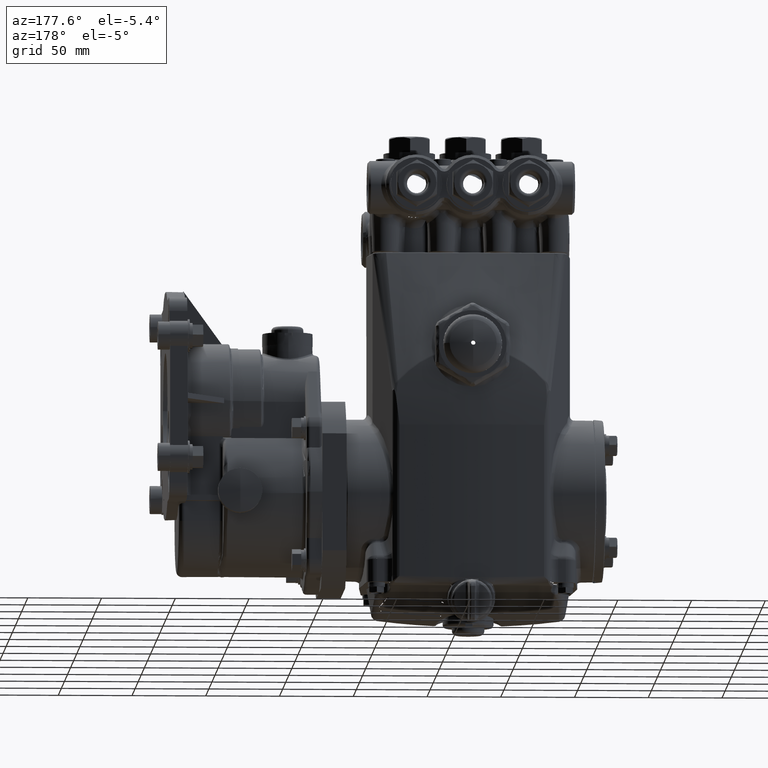
[diagram: clean part render]
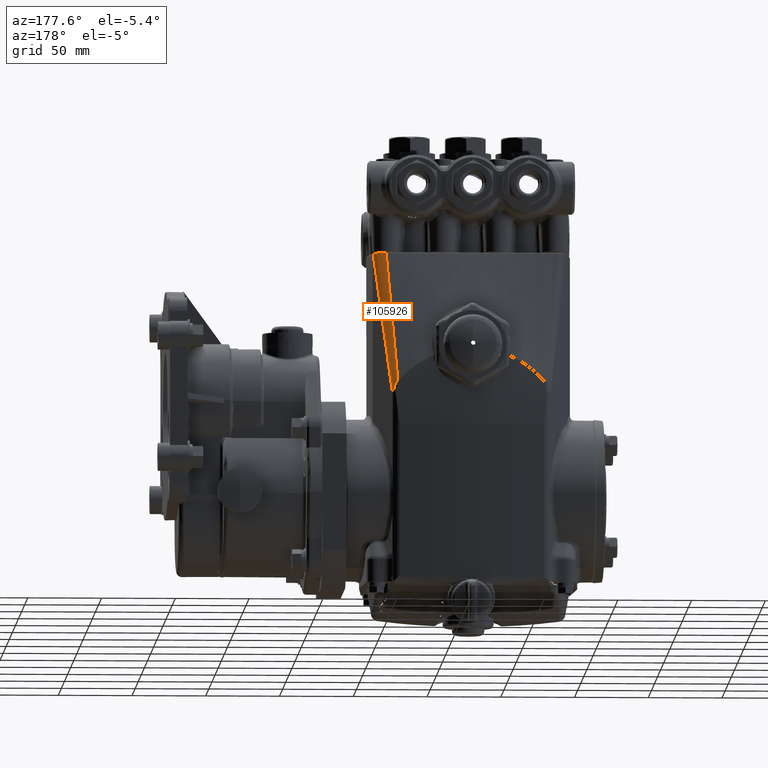
[diagram: same view with one face highlighted and labeled with its STEP entity id]
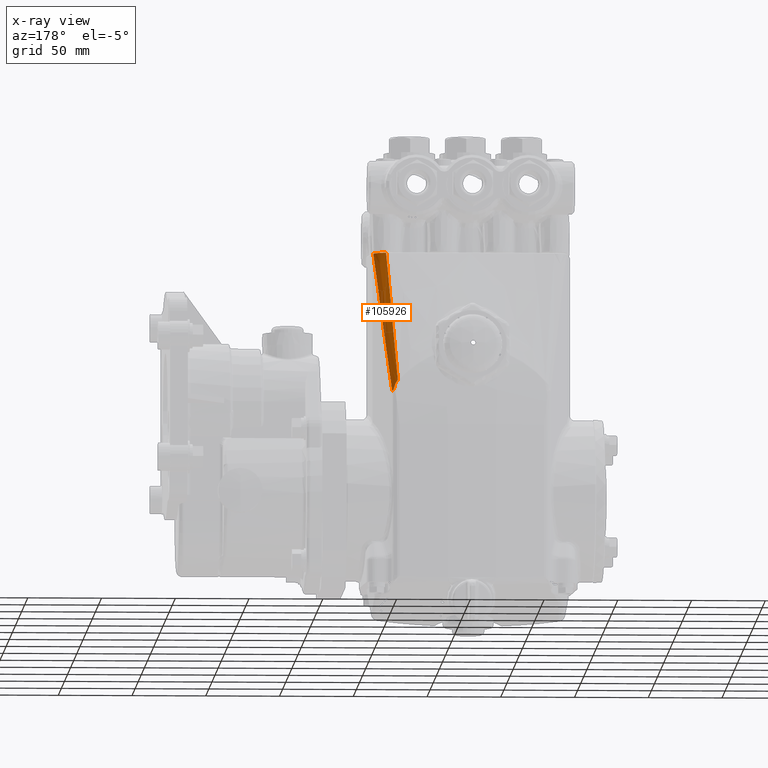
[diagram: x-ray of the same camera — body ghosted, the highlighted face saturated]
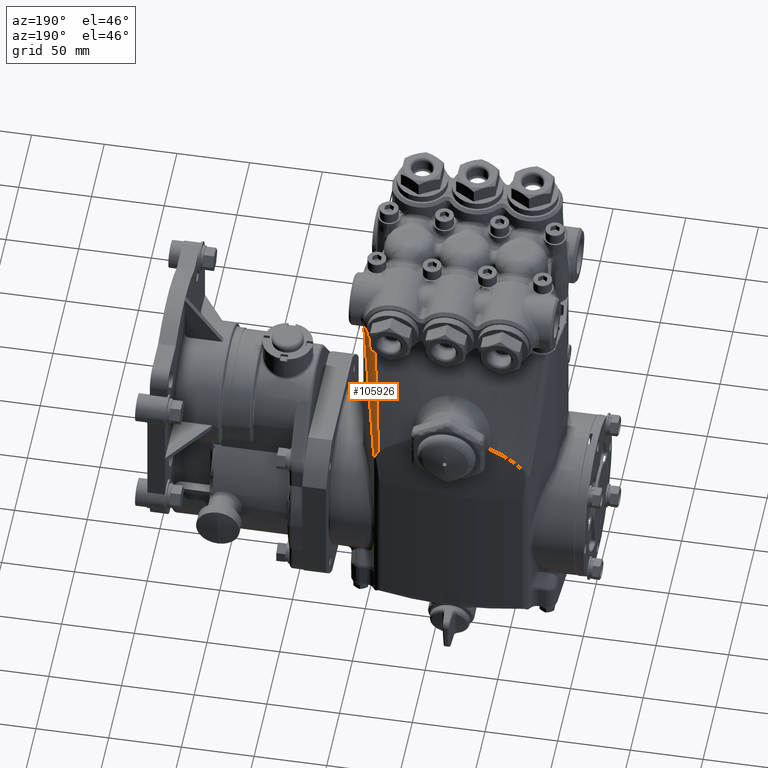
[diagram: same view with one face highlighted and labeled with its STEP entity id]
A machine part, auxiliary view. The second image highlights one B-rep face of the part: STEP entity #105926.
The next image is the same camera in x-ray: the body ghosted, the highlighted face saturated — about 0% of this face is hidden behind the body in this view.
A second angle (auxiliary view) of the same face is appended — the face is thin or edge-on in the first view.
In plain terms, the highlighted face is a freeform B-spline surface patch.
Its self-contained STEP definition (entity closure, byte-faithful):
#314 = CARTESIAN_POINT ( 'NONE',  ( 7.562873655809580598, 2.554432140936383266, -0.03309098887189890204 ) ) ;
#1697 = CARTESIAN_POINT ( 'NONE',  ( 7.777183426933175880, 2.051733337244006528, 1.702957958027195406 ) ) ;
#3331 = CARTESIAN_POINT ( 'NONE',  ( 7.522619161698805179, 2.648855675274700339, -0.3720936193829543215 ) ) ;
#3453 = CARTESIAN_POINT ( 'NONE',  ( 7.393098813319550544, 2.734490287559931065, -0.1106610744901027066 ) ) ;
#4557 = CARTESIAN_POINT ( 'NONE',  ( 7.519903509122433327, 2.234035027818447983, 1.783452006245903609 ) ) ;
#5600 = EDGE_CURVE ( 'NONE', #111888, #88281, #95067, .T. ) ;
#5750 = CARTESIAN_POINT ( 'NONE',  ( 7.749189711968563543, 2.117397198230688726, 2.146528745964769058 ) ) ;
#5963 = CARTESIAN_POINT ( 'NONE',  ( 7.375625846881747272, 2.737143240310925929, -0.09553503338174852699 ) ) ;
#6676 = CARTESIAN_POINT ( 'NONE',  ( 7.633104724085352899, 1.838938030482855313, 3.233404084876127627 ) ) ;
#7640 = B_SPLINE_CURVE_WITH_KNOTS ( 'NONE', 3,
 ( #90491, #28752, #71993, #115211, #79858, #25948, #69195, #123740 ),
 .UNSPECIFIED., .F., .F.,
 ( 4, 2, 2, 4 ),
 ( 0.006197228679374548743, 0.007185694159532413604, 0.007679926899611325651, 0.008174159639690236831 ),
 .UNSPECIFIED. ) ;
#10965 = CARTESIAN_POINT ( 'NONE',  ( 7.825723023778998311, 1.937875732253899530, 2.088090728601853296 ) ) ;
#11349 = CARTESIAN_POINT ( 'NONE',  ( 7.476074357493877720, 2.713993751705080726, -0.2966398913004384408 ) ) ;
#11676 = CARTESIAN_POINT ( 'NONE',  ( 7.470962912784099963, 2.770023900113496307, -0.8070605191750127583 ) ) ;
#12019 = CARTESIAN_POINT ( 'NONE',  ( 7.971456134114041525, 1.596034761402691293, 3.286506880500425609 ) ) ;
#12360 = CARTESIAN_POINT ( 'NONE',  ( 7.920745786734359584, 1.714984218671673721, 3.703346248341178093 ) ) ;
#12702 = CARTESIAN_POINT ( 'NONE',  ( 7.464662062092067174, 2.718299270357761532, -0.2524122286580191554 ) ) ;
#13103 = CARTESIAN_POINT ( 'NONE',  ( 7.985083714727890580, 1.564069030508170366, 3.403182473358240312 ) ) ;
#13386 = CARTESIAN_POINT ( 'NONE',  ( 7.777183426933175880, 2.051733337244006528, 1.702957958027195406 ) ) ;
#14076 = CARTESIAN_POINT ( 'NONE',  ( 7.897125436257847575, 1.770389634230091325, 2.666798204629753588 ) ) ;
#14778 = CARTESIAN_POINT ( 'NONE',  ( 7.564804775113310065, 2.549902383106480208, -0.01711912479244955335 ) ) ;
#15493 = CARTESIAN_POINT ( 'NONE',  ( 7.680794326170179431, 2.277829820799098126, 0.9321978588449574277 ) ) ;
#15590 = ORIENTED_EDGE ( 'NONE', *, *, #61160, .F. ) ;
#16299 = CARTESIAN_POINT ( 'NONE',  ( 7.660436783061306265, 1.790855436789827726, 3.408312226179295745 ) ) ;
#16377 = CARTESIAN_POINT ( 'NONE',  ( 7.369673716514241413, 2.755847131997030797, -0.1654504098632847697 ) ) ;
#17227 = B_SPLINE_CURVE_WITH_KNOTS ( 'NONE', 3,
 ( #5963, #71180, #58427, #27247, #38573, #4557, #47810, #114395, #91087, #6676, #17294, #80439 ),
 .UNSPECIFIED., .F., .F.,
 ( 4, 2, 2, 2, 2, 4 ),
 ( 0.005111012483130950024, 0.09547011241999045494, 0.4258638922745207611, 0.7562576721290510395, 0.9214545620563162620, 0.9958867908275442771 ),
 .UNSPECIFIED. ) ;
#17294 = CARTESIAN_POINT ( 'NONE',  ( 7.641080485748108941, 1.814990043985040602, 3.320897163510227124 ) ) ;
#18496 = CARTESIAN_POINT ( 'NONE',  ( 7.434223760393511959, 2.547822923216687574, 0.6135957228311668121 ) ) ;
#20680 = EDGE_CURVE ( 'NONE', #49770, #96737, #17227, .T. ) ;
#22307 = CARTESIAN_POINT ( 'NONE',  ( 7.632957982279686249, 2.390037830357848225, 0.5465610990745238817 ) ) ;
#23352 = CARTESIAN_POINT ( 'NONE',  ( 7.432694484203992147, 2.727101457942635587, -0.1672950184280930785 ) ) ;
#25948 = CARTESIAN_POINT ( 'NONE',  ( 7.517692456127621270, 2.659826255539218032, -0.3670850542725476173 ) ) ;
#26953 = CARTESIAN_POINT ( 'NONE',  ( 7.671891918944616862, 1.790475933080641457, 3.408244332651777952 ) ) ;
#27029 = CARTESIAN_POINT ( 'NONE',  ( 7.319276902702405607, 2.911577882308636234, -0.7494678146582004485 ) ) ;
#27247 = CARTESIAN_POINT ( 'NONE',  ( 7.434223760393511959, 2.547822923216687574, 0.6135957228311668121 ) ) ;
#28752 = CARTESIAN_POINT ( 'NONE',  ( 7.492712915427051534, 2.700545051289871878, -0.3468149569474054394 ) ) ;
#29740 = CARTESIAN_POINT ( 'NONE',  ( 7.954175439247062052, 1.626894037293744377, 3.404341078071102089 ) ) ;
#29818 = CARTESIAN_POINT ( 'NONE',  ( 7.302776213308685094, 2.963128931974266855, -0.9442927057357747289 ) ) ;
#32604 = CARTESIAN_POINT ( 'NONE',  ( 7.384721254123008727, 2.735798890066717171, -0.1027741448600245355 ) ) ;
#33990 = CARTESIAN_POINT ( 'NONE',  ( 7.414729866290421967, 2.730715432532549336, -0.1375777325313411736 ) ) ;
#34233 = ORIENTED_EDGE ( 'NONE', *, *, #48388, .F. ) ;
#34661 = CARTESIAN_POINT ( 'NONE',  ( 7.480854386826599978, 2.711840583980801078, -0.3191273077030752914 ) ) ;
#37629 = CARTESIAN_POINT ( 'NONE',  ( 8.012008795140314277, 1.500911827541259180, 3.634263754457295104 ) ) ;
#38481 = B_SPLINE_CURVE_WITH_KNOTS ( 'NONE', 3,
 ( #61654, #91487, #94266, #29740, #137454, #80842, #92900, #124023, #136084, #26953, #16299, #70891 ),
 .UNSPECIFIED., .F., .F.,
 ( 4, 2, 2, 2, 2, 4 ),
 ( 0.000000000000000000, 0.06847865877410981572, 0.3524106902538855501, 0.6363427217336612429, 0.9202747532134363251, 1.000000000000000000 ),
 .UNSPECIFIED. ) ;
#38573 = CARTESIAN_POINT ( 'NONE',  ( 7.463314394869821733, 2.443729383169785496, 1.003617739509605533 ) ) ;
#39391 = EDGE_LOOP ( 'NONE', ( #114474, #34233, #99516, #78463, #15590 ) ) ;
#44606 = CARTESIAN_POINT ( 'NONE',  ( 7.484907033872032045, 2.709680586922173617, -0.3417257412235324421 ) ) ;
#47416 = CARTESIAN_POINT ( 'NONE',  ( 7.920684763979286558, 1.715127357576681444, 2.859873751750552362 ) ) ;
#47810 = CARTESIAN_POINT ( 'NONE',  ( 7.547445278979549421, 2.128422388008574639, 2.173254481207762989 ) ) ;
#48388 = EDGE_CURVE ( 'NONE', #137652, #88281, #7640, .T. ) ;
#48976 = CARTESIAN_POINT ( 'NONE',  ( 7.491546415648070223, 2.721741909890087019, -0.1893552117035429971 ) ) ;
#49770 = VERTEX_POINT ( 'NONE', #53810 ) ;
#53810 = CARTESIAN_POINT ( 'NONE',  ( 7.375625846881747272, 2.737143240310925929, -0.09553503338174852699 ) ) ;
#54227 = CARTESIAN_POINT ( 'NONE',  ( 7.680794326170179431, 2.277829820799098126, 0.9321978588449574277 ) ) ;
#55259 = CARTESIAN_POINT ( 'NONE',  ( 7.957740678378054433, 1.628206617844081272, 3.169806400307227268 ) ) ;
#55276 = CARTESIAN_POINT ( 'NONE',  ( 7.377946634329615172, 2.736809680073645890, -0.09721533587736136406 ) ) ;
#58427 = CARTESIAN_POINT ( 'NONE',  ( 7.393707220464162511, 2.680239206044536804, 0.1174324344779516527 ) ) ;
#61160 = EDGE_CURVE ( 'NONE', #111888, #96737, #38481, .T. ) ;
#61654 = CARTESIAN_POINT ( 'NONE',  ( 7.985083714727890580, 1.564069030508170366, 3.403182473358240312 ) ) ;
#65944 = CARTESIAN_POINT ( 'NONE',  ( 7.408096232716415486, 2.731953641495595164, -0.1280199412798938008 ) ) ;
#67267 = CARTESIAN_POINT ( 'NONE',  ( 7.825723023778998311, 1.937875732253899530, 2.088090728601853296 ) ) ;
#69195 = CARTESIAN_POINT ( 'NONE',  ( 7.520272716273482594, 2.654359648808222616, -0.3696463486135037058 ) ) ;
#70272 = CARTESIAN_POINT ( 'NONE',  ( 7.642427063456133318, 1.809725246146902666, 3.340153995017914657 ) ) ;
#70891 = CARTESIAN_POINT ( 'NONE',  ( 7.649231913614319645, 1.791049278839745851, 3.408366182224901841 ) ) ;
#70971 = CARTESIAN_POINT ( 'NONE',  ( 7.661024263955580338, 1.756596559053275275, 3.534208655457764969 ) ) ;
#71180 = CARTESIAN_POINT ( 'NONE',  ( 7.384731024498925933, 2.708696098080833448, 0.01093015707340804638 ) ) ;
#71649 = CARTESIAN_POINT ( 'NONE',  ( 7.608492678613295368, 1.916063132653612167, 2.951572074899872611 ) ) ;
#71993 = CARTESIAN_POINT ( 'NONE',  ( 7.499789173798830255, 2.690850639354661400, -0.3518877059548362052 ) ) ;
#76570 = CARTESIAN_POINT ( 'NONE',  ( 7.985083714727890580, 1.564069030508170366, 3.403182473358240312 ) ) ;
#76939 = CARTESIAN_POINT ( 'NONE',  ( 7.539885847932886520, 2.608353823828100992, -0.2265761181016827386 ) ) ;
#78463 = ORIENTED_EDGE ( 'NONE', *, *, #20680, .T. ) ;
#79858 = CARTESIAN_POINT ( 'NONE',  ( 7.512176198336574906, 2.670443726464465151, -0.3620103659116428729 ) ) ;
#80439 = CARTESIAN_POINT ( 'NONE',  ( 7.649231913614319645, 1.791049278839745851, 3.408366182224901841 ) ) ;
#80842 = CARTESIAN_POINT ( 'NONE',  ( 7.870985175301568049, 1.716204781703370319, 3.406004161551645204 ) ) ;
#80918 = CARTESIAN_POINT ( 'NONE',  ( 7.448579671196657870, 2.822527473415048949, -0.5785132798032039947 ) ) ;
#81641 = CARTESIAN_POINT ( 'NONE',  ( 7.463314394869821733, 2.443729383169785496, 1.003617739509605533 ) ) ;
#83021 = CARTESIAN_POINT ( 'NONE',  ( 7.577452014151538684, 2.520236204605422081, 0.5890934326789909470 ) ) ;
#83738 = CARTESIAN_POINT ( 'NONE',  ( 7.405602884145618070, 2.923336593387357407, -0.9676898442611479023 ) ) ;
#83753 = CARTESIAN_POINT ( 'NONE',  ( 7.649231913614319645, 1.791049278839745851, 3.408366182224901841 ) ) ;
#86551 = CARTESIAN_POINT ( 'NONE',  ( 7.397000008053365327, 2.733849726717085815, -0.1148639530593766889 ) ) ;
#87889 = CARTESIAN_POINT ( 'NONE',  ( 7.522619161698805179, 2.648855675274700339, -0.3720936193829543215 ) ) ;
#88281 = VERTEX_POINT ( 'NONE', #3331 ) ;
#89364 =( BOUNDED_SURFACE ( )  B_SPLINE_SURFACE ( 2, 3, ( 
 ( #37629, #112774, #109452, #102178, #108069, #10965, #1697, #54227, #22307, #314, #76939, #130034, #11676, #120096 ),
 ( #12360, #90135, #133322, #92254, #137538, #5750, #104972, #126913, #83021, #124825, #48976, #80918, #124104, #83738 ),
 ( #126215, #70971, #70272, #71649, #113497, #135440, #93667, #81641, #18496, #138246, #16377, #103561, #27029, #29818 ) ),
 .UNSPECIFIED., .F., .F., .T. ) 
 B_SPLINE_SURFACE_WITH_KNOTS ( ( 3, 3 ),
 ( 4, 2, 2, 2, 2, 2, 4 ),
 ( 0.000000000000000000, 1.000000000000000000 ),
 ( -0.05579888569863813291, -0.04039671253618186408, -0.02499453937372558832, 0.005809806951186959750, 0.03661415327609950782, 0.05201632643855577665, 0.06741849960101205241 ),
 .UNSPECIFIED. ) 
 GEOMETRIC_REPRESENTATION_ITEM ( )  RATIONAL_B_SPLINE_SURFACE ( (
 ( 1.000000000000000000, 1.000000000000000000, 1.000000000000000000, 1.000000000000000000, 1.000000000000000000, 1.000000000000000000, 1.000000000000000000, 1.000000000000000000, 1.000000000000000000, 1.000000000000000000, 1.000000000000000000, 1.000000000000000000, 1.000000000000000000, 1.000000000000000000),
 ( 0.8249655899556018745, 0.8281912456652233967, 0.8315314859655612567, 0.8384645648586018796, 0.8420556766761636558, 0.8532132272860135647, 0.8611688039213737378, 0.8781266334368532656, 0.8871406962535873797, 0.9012423333731803821, 0.9060298368779703404, 0.9157270827393148016, 0.9206428270897365485, 0.9255808091159235529),
 ( 1.000000000000000000, 1.000000000000000000, 1.000000000000000000, 1.000000000000000000, 1.000000000000000000, 1.000000000000000000, 1.000000000000000000, 1.000000000000000000, 1.000000000000000000, 1.000000000000000000, 1.000000000000000000, 1.000000000000000000, 1.000000000000000000, 1.000000000000000000) ) ) 
 REPRESENTATION_ITEM ( '' )  SURFACE ( )  );
#90135 = CARTESIAN_POINT ( 'NONE',  ( 7.899312672677385905, 1.765259111566140682, 3.508797972423171263 ) ) ;
#90491 = CARTESIAN_POINT ( 'NONE',  ( 7.484907033872032045, 2.709680586922173617, -0.3417257412235324421 ) ) ;
#91087 = CARTESIAN_POINT ( 'NONE',  ( 7.608492678613295368, 1.916063132653612167, 2.951572074899872611 ) ) ;
#91487 = CARTESIAN_POINT ( 'NONE',  ( 7.981247557013230853, 1.572835169907198960, 3.403347588975616400 ) ) ;
#92254 = CARTESIAN_POINT ( 'NONE',  ( 7.834994489049248223, 1.916127986151065166, 2.925082173516398321 ) ) ;
#92900 = CARTESIAN_POINT ( 'NONE',  ( 7.837821949173975788, 1.739350698800629980, 3.406528156838716903 ) ) ;
#93667 = CARTESIAN_POINT ( 'NONE',  ( 7.519903509122433327, 2.234035027818447983, 1.783452006245903609 ) ) ;
#94266 = CARTESIAN_POINT ( 'NONE',  ( 7.977112545714770242, 1.581591123035074986, 3.403454440607214693 ) ) ;
#95067 = B_SPLINE_CURVE_WITH_KNOTS ( 'NONE', 3,
 ( #76570, #12019, #55259, #47416, #14076, #67267, #13386, #15493, #131746, #14778, #132437, #87889 ),
 .UNSPECIFIED., .F., .F.,
 ( 4, 2, 2, 2, 2, 4 ),
 ( 0.004637689603018553021, 0.08750035464542371688, 0.2250003084241776474, 0.5000002159816854252, 0.7750001235391932308, 0.9011339633073934818 ),
 .UNSPECIFIED. ) ;
#96737 = VERTEX_POINT ( 'NONE', #83753 ) ;
#97486 = FACE_OUTER_BOUND ( 'NONE', #39391, .T. ) ;
#99194 = CARTESIAN_POINT ( 'NONE',  ( 7.442017461743986040, 2.724858167453735103, -0.1880867924627545040 ) ) ;
#99516 = ORIENTED_EDGE ( 'NONE', *, *, #120741, .F. ) ;
#99901 = CARTESIAN_POINT ( 'NONE',  ( 7.458041541927501683, 2.720453486213363803, -0.2306304021865470399 ) ) ;
#102178 = CARTESIAN_POINT ( 'NONE',  ( 7.920684763979286558, 1.715127357576681444, 2.859873751750552362 ) ) ;
#103561 = CARTESIAN_POINT ( 'NONE',  ( 7.335949430193478449, 2.859782112398801424, -0.5547431563655093045 ) ) ;
#104972 = CARTESIAN_POINT ( 'NONE',  ( 7.706263996233504443, 2.218086522087802770, 1.757153763306578131 ) ) ;
#105926 = ADVANCED_FACE ( 'NONE', ( #97486 ), #89364, .F. ) ;
#106428 = B_SPLINE_CURVE_WITH_KNOTS ( 'NONE', 3,
 ( #108449, #55276, #109138, #32604, #131758, #3453, #86551, #65944, #33990, #23352, #99194, #99901, #12702, #11349, #34661, #44606 ),
 .UNSPECIFIED., .F., .F.,
 ( 4, 2, 2, 2, 2, 2, 2, 4 ),
 ( -6.000000001276593259E-08, 0.0002197440913770661941, 0.0004395481827541451508, 0.0008791563655082433246, 0.001758372731016438588, 0.003516805462032787048, 0.005275238193049136375, 0.007033670924065483533 ),
 .UNSPECIFIED. ) ;
#108069 = CARTESIAN_POINT ( 'NONE',  ( 7.897125436257847575, 1.770389634230091325, 2.666798204629753588 ) ) ;
#108449 = CARTESIAN_POINT ( 'NONE',  ( 7.375625846881747272, 2.737143240310925929, -0.09553503338174852699 ) ) ;
#109138 = CARTESIAN_POINT ( 'NONE',  ( 7.380289421941003347, 2.736465164476900913, -0.09904997768316524398 ) ) ;
#109452 = CARTESIAN_POINT ( 'NONE',  ( 7.966928419498692904, 1.606655260452556799, 3.246651918383754332 ) ) ;
#111888 = VERTEX_POINT ( 'NONE', #13103 ) ;
#112774 = CARTESIAN_POINT ( 'NONE',  ( 7.989448243976379871, 1.553831309566227059, 3.440473069241809956 ) ) ;
#113497 = CARTESIAN_POINT ( 'NONE',  ( 7.592721375128086869, 1.969237389817892536, 2.757098730116178675 ) ) ;
#114395 = CARTESIAN_POINT ( 'NONE',  ( 7.592721375128086869, 1.969237389817892536, 2.757098730116178675 ) ) ;
#114474 = ORIENTED_EDGE ( 'NONE', *, *, #5600, .T. ) ;
#115211 = CARTESIAN_POINT ( 'NONE',  ( 7.509223428990243754, 2.675634726153790499, -0.3594793584381821283 ) ) ;
#120096 = CARTESIAN_POINT ( 'NONE',  ( 7.447892596540848231, 2.824139119944507836, -1.000486521301392040 ) ) ;
#120741 = EDGE_CURVE ( 'NONE', #49770, #137652, #106428, .T. ) ;
#123740 = CARTESIAN_POINT ( 'NONE',  ( 7.522619161698805179, 2.648855675274700339, -0.3720936193829543215 ) ) ;
#124023 = CARTESIAN_POINT ( 'NONE',  ( 7.763492990129782001, 1.774426844233869316, 3.407465097141626931 ) ) ;
#124104 = CARTESIAN_POINT ( 'NONE',  ( 7.427092446865342978, 2.872929290768934774, -0.7730974992407746438 ) ) ;
#124825 = CARTESIAN_POINT ( 'NONE',  ( 7.513025199988343061, 2.671359889825013934, 0.005229493552613507026 ) ) ;
#126163 = CARTESIAN_POINT ( 'NONE',  ( 7.484907033872032045, 2.709680586922173617, -0.3417257412235324421 ) ) ;
#126215 = CARTESIAN_POINT ( 'NONE',  ( 7.679551982240057306, 1.703518968016388246, 3.728294454885777931 ) ) ;
#126913 = CARTESIAN_POINT ( 'NONE',  ( 7.620394307881837470, 2.419507994309666454, 0.9784360804815427359 ) ) ;
#130034 = CARTESIAN_POINT ( 'NONE',  ( 7.493975192960014020, 2.716044813420384063, -0.6135929309832585110 ) ) ;
#131746 = CARTESIAN_POINT ( 'NONE',  ( 7.632957982279686249, 2.390037830357848225, 0.5465610990745238817 ) ) ;
#131758 = CARTESIAN_POINT ( 'NONE',  ( 7.386863782431471570, 2.735469436676059019, -0.1047024538744412009 ) ) ;
#132437 = CARTESIAN_POINT ( 'NONE',  ( 7.543688868409200943, 2.599433214031181993, -0.1945899510195993054 ) ) ;
#133322 = CARTESIAN_POINT ( 'NONE',  ( 7.877877503871268949, 1.815538824224937953, 3.314256631331587766 ) ) ;
#135440 = CARTESIAN_POINT ( 'NONE',  ( 7.547445278979549421, 2.128422388008574639, 2.173254481207762989 ) ) ;
#136084 = CARTESIAN_POINT ( 'NONE',  ( 7.724921586886313918, 1.785457665029827057, 3.407816515501954857 ) ) ;
#137454 = CARTESIAN_POINT ( 'NONE',  ( 7.929770887316297312, 1.659107532609368496, 3.404849319700717913 ) ) ;
#137538 = CARTESIAN_POINT ( 'NONE',  ( 7.813547211724110930, 1.966436101312742712, 2.730460419837286601 ) ) ;
#137652 = VERTEX_POINT ( 'NONE', #126163 ) ;
#138246 = CARTESIAN_POINT ( 'NONE',  ( 7.386500690332095331, 2.703791610416656610, 0.02918166839136659280 ) ) ;